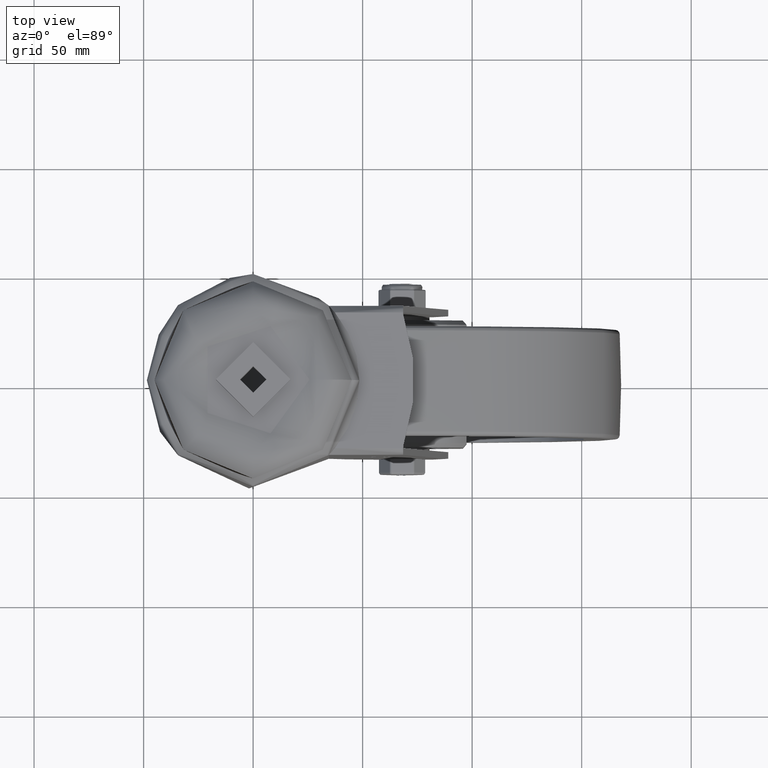
[diagram: clean part render]
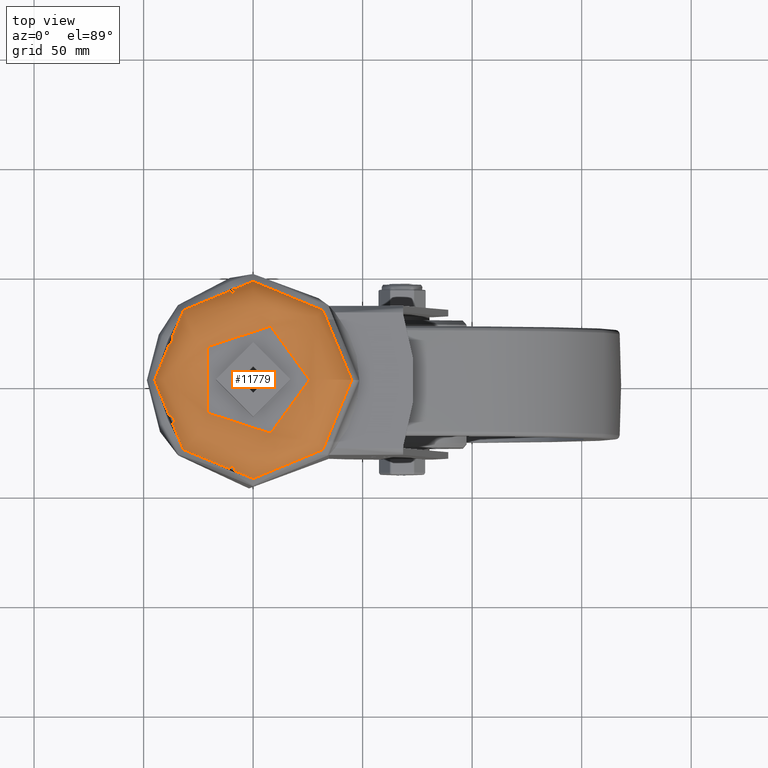
[diagram: same view with one face highlighted and labeled with its STEP entity id]
A machine part, top view. The second image highlights one B-rep face of the part: STEP entity #11779.
In plain terms, the highlighted toroidal blend (fillet) surface has major radius 33.5918 mm and minor (blend) radius 11.7283 mm.
Its self-contained STEP definition (entity closure, byte-faithful):
#1673=TOROIDAL_SURFACE('',#12893,33.5917832167832,11.7282602472535);
#2271=FACE_OUTER_BOUND('',#3075,.T.);
#3075=EDGE_LOOP('',(#10614,#10615,#10616,#10617));
#4951=CIRCLE('',#12888,45.);
#4955=CIRCLE('',#12894,11.7282602472535);
#4956=CIRCLE('',#12895,25.75);
#5968=VERTEX_POINT('',#27325);
#5972=VERTEX_POINT('',#27337);
#7536=EDGE_CURVE('',#5968,#5968,#4951,.T.);
#7542=EDGE_CURVE('',#5968,#5972,#4955,.T.);
#7543=EDGE_CURVE('',#5972,#5972,#4956,.T.);
#10614=ORIENTED_EDGE('',*,*,#7536,.T.);
#10615=ORIENTED_EDGE('',*,*,#7542,.T.);
#10616=ORIENTED_EDGE('',*,*,#7543,.T.);
#10617=ORIENTED_EDGE('',*,*,#7542,.F.);
#11779=ADVANCED_FACE('',(#2271),#1673,.T.);
#12888=AXIS2_PLACEMENT_3D('',#27326,#15334,#15335);
#12893=AXIS2_PLACEMENT_3D('',#27336,#15346,#15347);
#12894=AXIS2_PLACEMENT_3D('',#27338,#15348,#15349);
#12895=AXIS2_PLACEMENT_3D('',#27339,#15350,#15351);
#15334=DIRECTION('center_axis',(0.,0.,1.));
#15335=DIRECTION('ref_axis',(1.,0.,0.));
#15346=DIRECTION('center_axis',(0.,0.,-1.));
#15347=DIRECTION('ref_axis',(-1.,0.,0.));
#15348=DIRECTION('center_axis',(-1.22464679914735E-16,-1.,0.));
#15349=DIRECTION('ref_axis',(1.,-1.22464679914735E-16,0.));
#15350=DIRECTION('center_axis',(0.,0.,-1.));
#15351=DIRECTION('ref_axis',(-1.,0.,0.));
#27325=CARTESIAN_POINT('',(45.,5.51091059616309E-15,0.999999999999992));
#27326=CARTESIAN_POINT('Origin',(0.,0.,0.999999999999992));
#27336=CARTESIAN_POINT('Origin',(0.,0.,-1.72115384615385));
#27337=CARTESIAN_POINT('',(25.75,-3.15346550780443E-15,7.));
#27338=CARTESIAN_POINT('Origin',(33.5917832167832,-4.11380697940853E-15,
-1.72115384615385));
#27339=CARTESIAN_POINT('Origin',(0.,0.,7.));